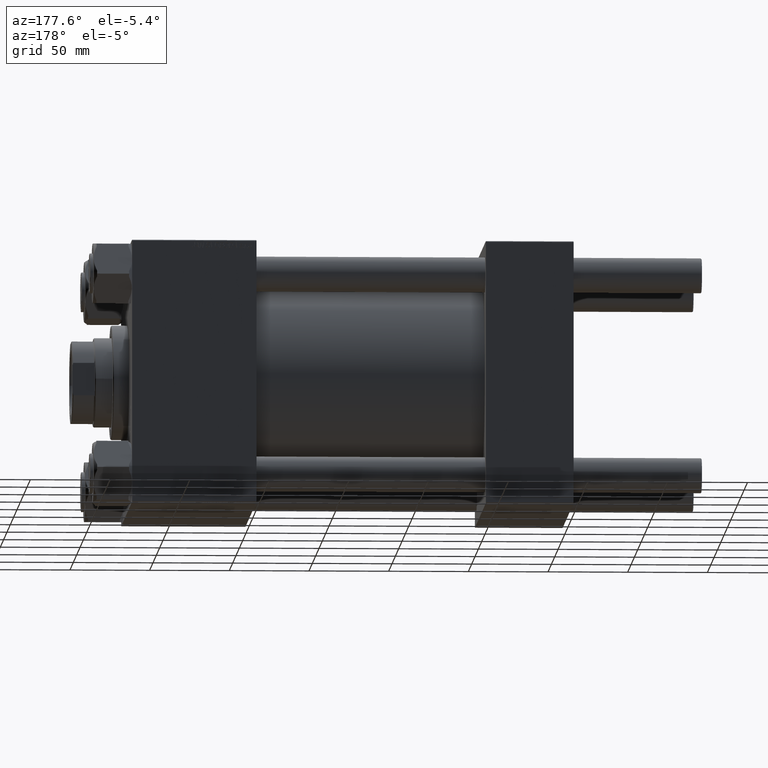
[diagram: clean part render]
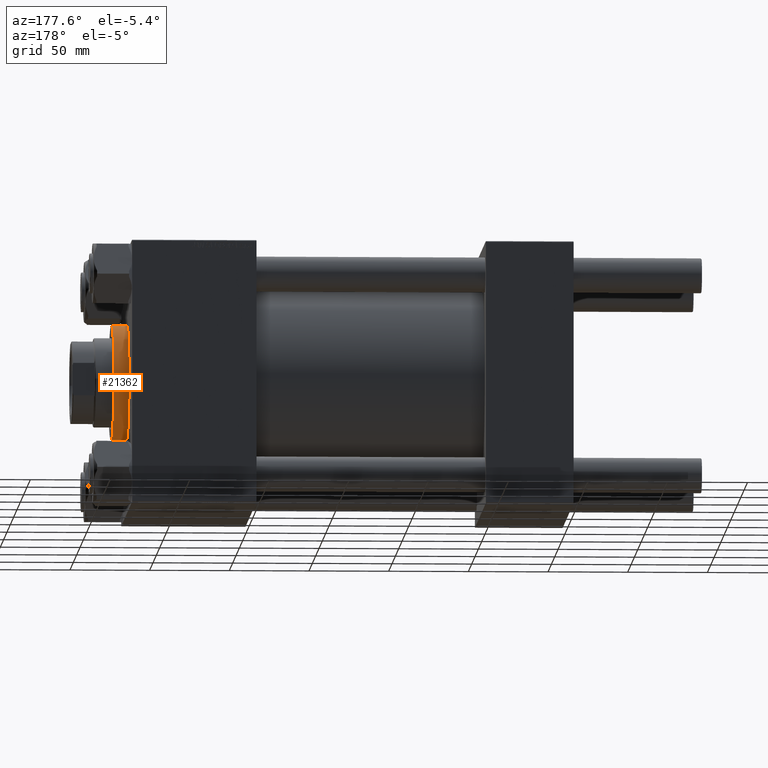
[diagram: same view with one face highlighted and labeled with its STEP entity id]
A machine part, auxiliary view. The second image highlights one B-rep face of the part: STEP entity #21362.
In plain terms, the highlighted cylindrical surface (partial cylindrical patch) has radius 36 mm, axis along (-1, -0, 0).
Its self-contained STEP definition (entity closure, byte-faithful):
#634 = DIRECTION ( 'NONE',  ( 0.000000000000000000, 0.000000000000000000, -1.000000000000000000 ) ) ;
#1564 = CIRCLE ( 'NONE', #41513, 36.00000000000000000 ) ;
#3106 = ORIENTED_EDGE ( 'NONE', *, *, #16992, .T. ) ;
#3898 = EDGE_CURVE ( 'NONE', #45123, #9865, #4467, .T. ) ;
#4467 = LINE ( 'NONE', #38394, #47905 ) ;
#5637 = CARTESIAN_POINT ( 'NONE',  ( 0.000000000000000000, 0.000000000000000000, 28.69999999999999929 ) ) ;
#7050 = AXIS2_PLACEMENT_3D ( 'NONE', #34580, #38634, #7512 ) ;
#7512 = DIRECTION ( 'NONE',  ( -1.000000000000000000, 0.000000000000000000, 0.000000000000000000 ) ) ;
#9865 = VERTEX_POINT ( 'NONE', #46772 ) ;
#12860 = ORIENTED_EDGE ( 'NONE', *, *, #41750, .T. ) ;
#16315 = CARTESIAN_POINT ( 'NONE',  ( 36.00000000000000000, 4.408728476930470856E-15, 28.69999999999999929 ) ) ;
#16992 = EDGE_CURVE ( 'NONE', #31278, #34085, #30860, .T. ) ;
#19014 = CYLINDRICAL_SURFACE ( 'NONE', #7050, 36.00000000000000000 ) ;
#19782 = CARTESIAN_POINT ( 'NONE',  ( 36.00000000000000000, 4.408728476930470856E-15, 38.20000000000001705 ) ) ;
#20033 = DIRECTION ( 'NONE',  ( -0.000000000000000000, -0.000000000000000000, -1.000000000000000000 ) ) ;
#21362 = ADVANCED_FACE ( 'NONE', ( #31763 ), #19014, .T. ) ;
#23845 = DIRECTION ( 'NONE',  ( 0.000000000000000000, 0.000000000000000000, 1.000000000000000000 ) ) ;
#27117 = CARTESIAN_POINT ( 'NONE',  ( -36.00000000000000000, 0.000000000000000000, 38.20000000000001705 ) ) ;
#27415 = DIRECTION ( 'NONE',  ( 1.000000000000000000, 0.000000000000000000, 0.000000000000000000 ) ) ;
#29625 = ORIENTED_EDGE ( 'NONE', *, *, #3898, .F. ) ;
#30608 = CARTESIAN_POINT ( 'NONE',  ( 36.00000000000000000, 4.408728476930470856E-15, 38.69999999999999574 ) ) ;
#30860 = LINE ( 'NONE', #30608, #31111 ) ;
#31111 = VECTOR ( 'NONE', #46673, 1000.000000000000000 ) ;
#31278 = VERTEX_POINT ( 'NONE', #19782 ) ;
#31763 = FACE_OUTER_BOUND ( 'NONE', #45953, .T. ) ;
#32303 = EDGE_CURVE ( 'NONE', #45123, #31278, #1564, .T. ) ;
#33718 = ORIENTED_EDGE ( 'NONE', *, *, #32303, .T. ) ;
#34085 = VERTEX_POINT ( 'NONE', #16315 ) ;
#34580 = CARTESIAN_POINT ( 'NONE',  ( 0.000000000000000000, 0.000000000000000000, 38.69999999999999574 ) ) ;
#35864 = CARTESIAN_POINT ( 'NONE',  ( 0.000000000000000000, 0.000000000000000000, 38.20000000000001705 ) ) ;
#36778 = DIRECTION ( 'NONE',  ( 1.000000000000000000, 0.000000000000000000, 0.000000000000000000 ) ) ;
#38394 = CARTESIAN_POINT ( 'NONE',  ( -36.00000000000000000, 0.000000000000000000, 38.69999999999999574 ) ) ;
#38432 = AXIS2_PLACEMENT_3D ( 'NONE', #5637, #23845, #36778 ) ;
#38634 = DIRECTION ( 'NONE',  ( -0.000000000000000000, -0.000000000000000000, -1.000000000000000000 ) ) ;
#41513 = AXIS2_PLACEMENT_3D ( 'NONE', #35864, #634, #27415 ) ;
#41750 = EDGE_CURVE ( 'NONE', #34085, #9865, #49041, .T. ) ;
#45123 = VERTEX_POINT ( 'NONE', #27117 ) ;
#45953 = EDGE_LOOP ( 'NONE', ( #33718, #3106, #12860, #29625 ) ) ;
#46673 = DIRECTION ( 'NONE',  ( -0.000000000000000000, -0.000000000000000000, -1.000000000000000000 ) ) ;
#46772 = CARTESIAN_POINT ( 'NONE',  ( -36.00000000000000000, 0.000000000000000000, 28.69999999999999929 ) ) ;
#47905 = VECTOR ( 'NONE', #20033, 1000.000000000000000 ) ;
#49041 = CIRCLE ( 'NONE', #38432, 36.00000000000000000 ) ;